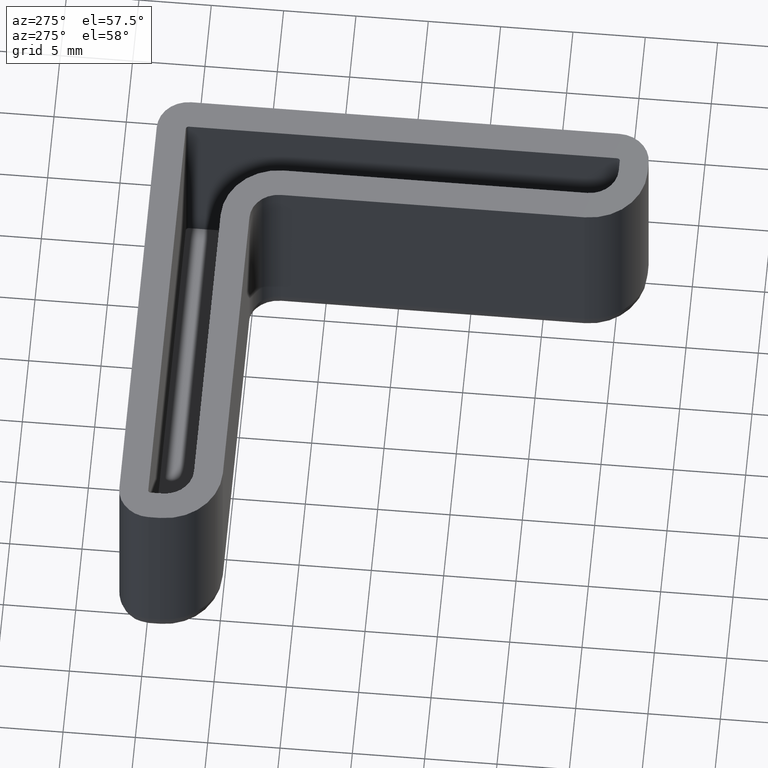
[diagram: clean part render]
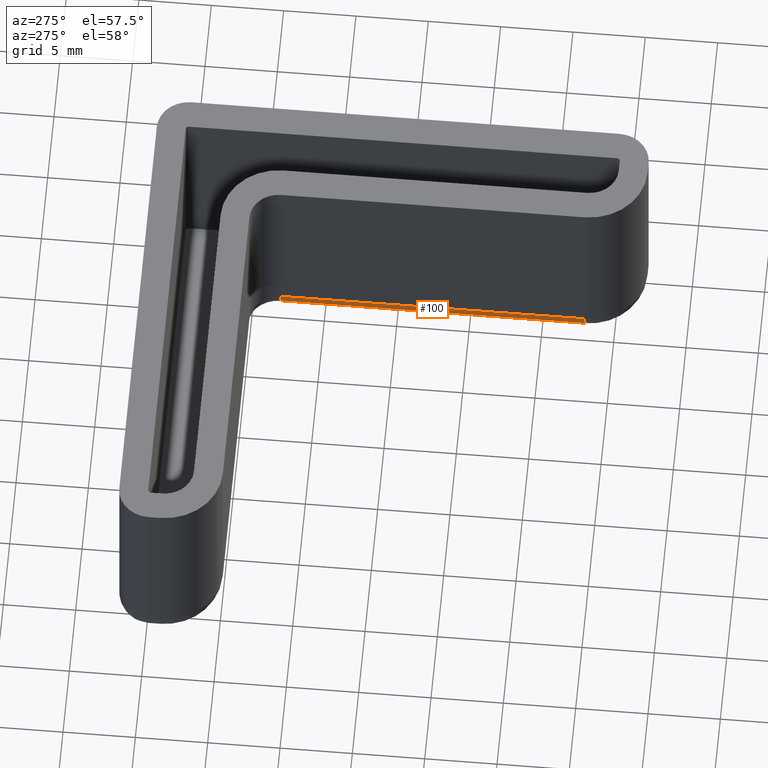
[diagram: same view with one face highlighted and labeled with its STEP entity id]
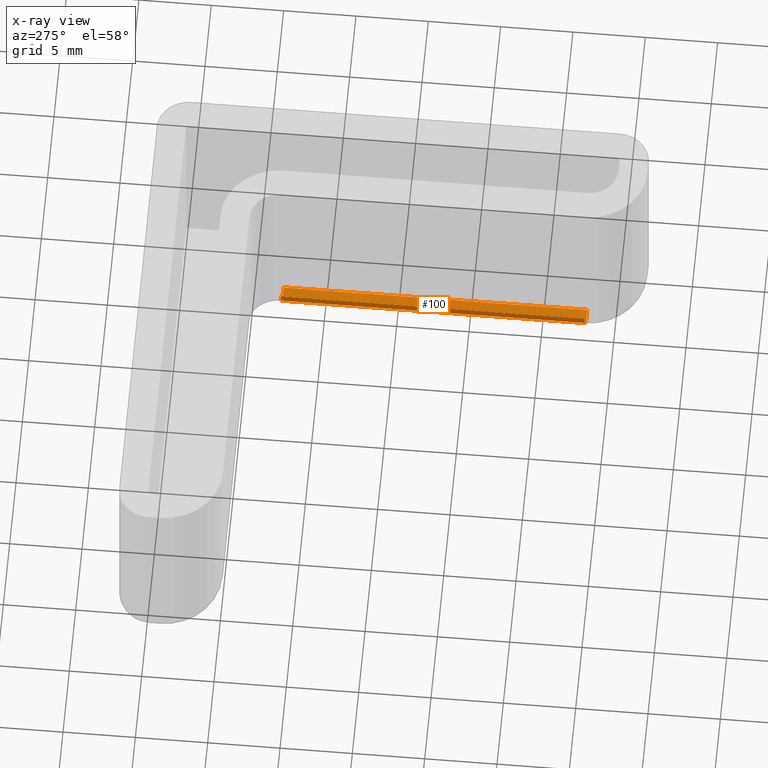
[diagram: x-ray of the same camera — body ghosted, the highlighted face saturated]
A machine part, auxiliary view. The second image highlights one B-rep face of the part: STEP entity #100.
The next image is the same camera in x-ray: the body ghosted, the highlighted face saturated — about 0% of this face is hidden behind the body in this view.
In plain terms, the highlighted cylindrical surface (edge-blend (fillet) strip) has radius 2 mm, axis along (-0, -1, 0).
Its self-contained STEP definition (entity closure, byte-faithful):
#100 = ADVANCED_FACE( '', ( #166 ), #167, .T. );
#166 = FACE_OUTER_BOUND( '', #311, .T. );
#167 = CYLINDRICAL_SURFACE( '', #312, 2.00000000000000 );
#311 = EDGE_LOOP( '', ( #541, #542, #543, #544 ) );
#312 = AXIS2_PLACEMENT_3D( '', #545, #546, #547 );
#541 = ORIENTED_EDGE( '', *, *, #723, .T. );
#542 = ORIENTED_EDGE( '', *, *, #707, .F. );
#543 = ORIENTED_EDGE( '', *, *, #721, .F. );
#544 = ORIENTED_EDGE( '', *, *, #697, .F. );
#545 = CARTESIAN_POINT( '', ( -3.00000000000000, -7.00000000000001, -13.0000000000000 ) );
#546 = DIRECTION( '', ( -1.83175957041426E-016, -1.00000000000000, 0.000000000000000 ) );
#547 = DIRECTION( '', ( -1.00000000000000, 1.83175957041426E-016, 0.000000000000000 ) );
#697 = EDGE_CURVE( '', #836, #839, #840, .T. );
#707 = EDGE_CURVE( '', #855, #857, #858, .F. );
#721 = EDGE_CURVE( '', #839, #855, #877, .T. );
#723 = EDGE_CURVE( '', #836, #857, #879, .T. );
#836 = VERTEX_POINT( '', #1026 );
#839 = VERTEX_POINT( '', #1030 );
#840 = LINE( '', #1031, #1032 );
#855 = VERTEX_POINT( '', #1052 );
#857 = VERTEX_POINT( '', #1054 );
#858 = LINE( '', #1055, #1056 );
#877 = CIRCLE( '', #1078, 2.00000000000000 );
#879 = CIRCLE( '', #1080, 2.00000000000000 );
#1026 = CARTESIAN_POINT( '', ( -5.00000000000000, -6.99999999999999, -13.0000000000000 ) );
#1030 = CARTESIAN_POINT( '', ( -5.00000000000001, -28.0000000000000, -13.0000000000000 ) );
#1031 = CARTESIAN_POINT( '', ( -5.00000000000000, -28.0000000000000, -13.0000000000000 ) );
#1032 = VECTOR( '', #1205, 1000.00000000000 );
#1052 = CARTESIAN_POINT( '', ( -3.00000000000000, -28.0000000000000, -15.0000000000000 ) );
#1054 = CARTESIAN_POINT( '', ( -3.00000000000000, -7.00000000000000, -15.0000000000000 ) );
#1055 = CARTESIAN_POINT( '', ( -3.00000000000000, -7.00000000000000, -15.0000000000000 ) );
#1056 = VECTOR( '', #1223, 1000.00000000000 );
#1078 = AXIS2_PLACEMENT_3D( '', #1257, #1258, #1259 );
#1080 = AXIS2_PLACEMENT_3D( '', #1263, #1264, #1265 );
#1205 = DIRECTION( '', ( -1.83175957041426E-016, -1.00000000000000, 0.000000000000000 ) );
#1223 = DIRECTION( '', ( -1.83175957041426E-016, -1.00000000000000, 0.000000000000000 ) );
#1257 = CARTESIAN_POINT( '', ( -3.00000000000000, -28.0000000000000, -13.0000000000000 ) );
#1258 = DIRECTION( '', ( -1.22460635382238E-016, -1.00000000000000, 0.000000000000000 ) );
#1259 = DIRECTION( '', ( 0.000000000000000, 0.000000000000000, 1.00000000000000 ) );
#1263 = CARTESIAN_POINT( '', ( -3.00000000000000, -6.99999999999999, -13.0000000000000 ) );
#1264 = DIRECTION( '', ( 1.61226284059457E-015, -1.00000000000000, 1.73472347597681E-015 ) );
#1265 = DIRECTION( '', ( 2.12435339080604E-031, 1.73472347597681E-015, 1.00000000000000 ) );